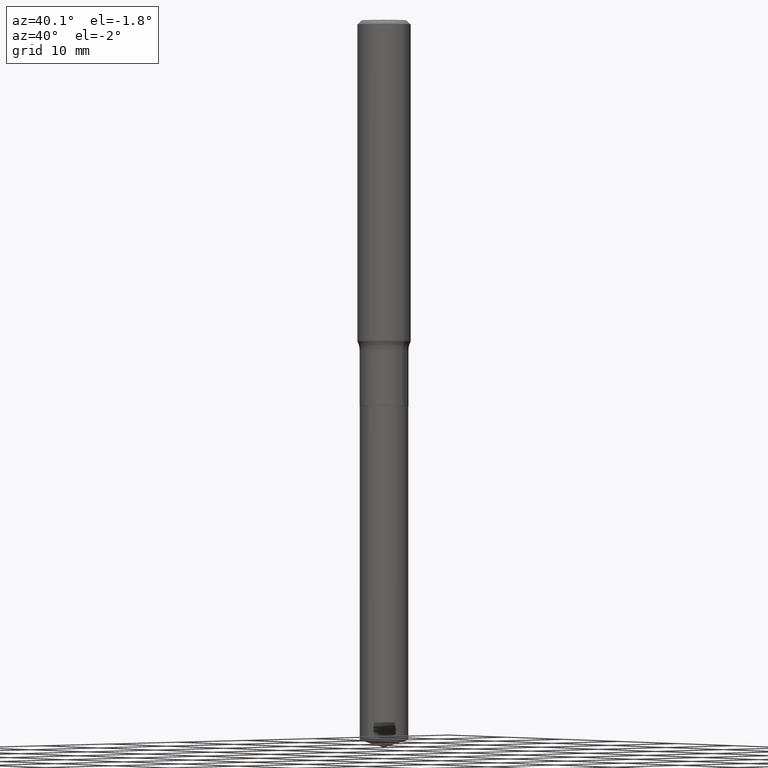
[diagram: clean part render]
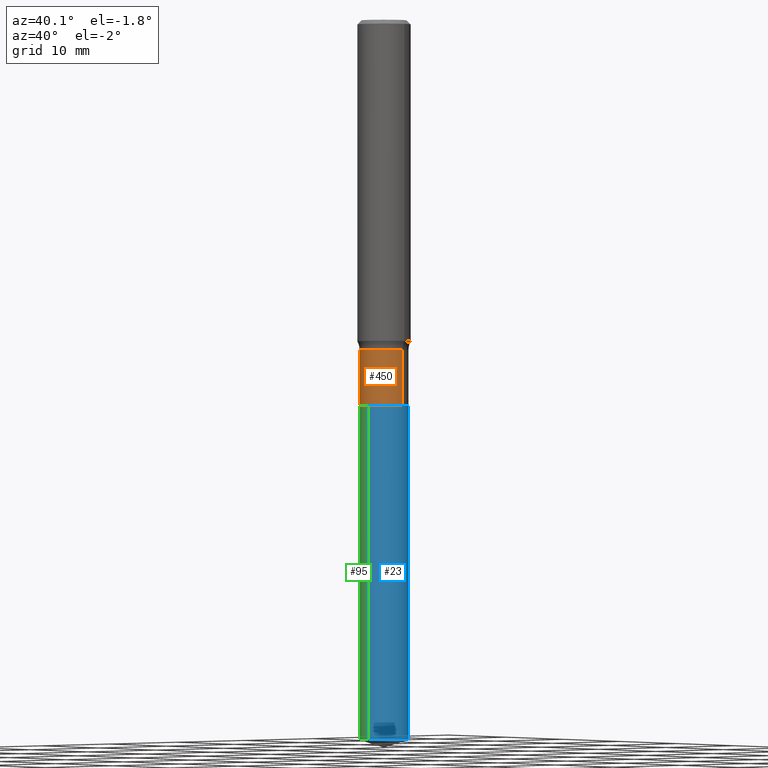
[diagram: same view with three faces highlighted in distinct colors, each labeled with its STEP entity id]
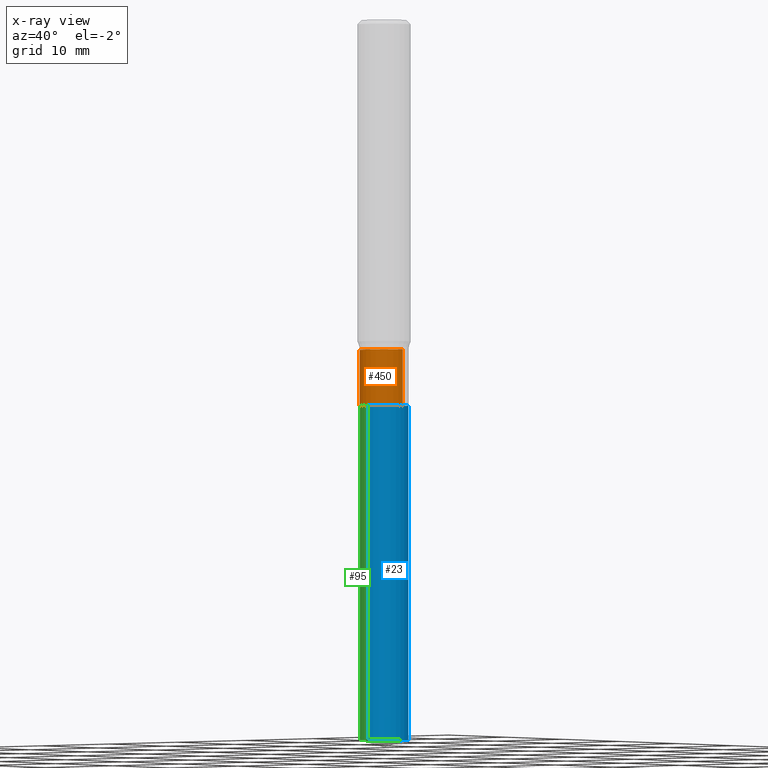
[diagram: x-ray of the same camera — body ghosted, the three highlighted faces saturated]
A machine part, auxiliary view with three faces highlighted in distinct colors.
The next image is the same camera in x-ray (body ghosted, the three faces saturated) — at least one of them is partly hidden behind the body in this view.
Their STEP definitions:

[orange] entity #450 — the highlighted cylindrical surface (edge-blend (fillet) strip) has radius 2.7495 mm, axis along (-0, 0, 1).
#15 = AXIS2_PLACEMENT_3D ( 'NONE', #34, #187, #227 ) ;
#28 = CARTESIAN_POINT ( 'NONE',  ( 0.1082499999999999712, -5.865688649256482338E-15, -1.463500000000000023 ) ) ;
#29 = DIRECTION ( 'NONE',  ( -2.445468806185136597E-29, 3.491481338843145583E-15, 1.000000000000000000 ) ) ;
#34 = CARTESIAN_POINT ( 'NONE',  ( 0.000000000000000000, 0.000000000000000000, 0.000000000000000000 ) ) ;
#54 = AXIS2_PLACEMENT_3D ( 'NONE', #295, #113, #181 ) ;
#69 = ORIENTED_EDGE ( 'NONE', *, *, #369, .T. ) ;
#77 = CYLINDRICAL_SURFACE ( 'NONE', #15, 0.1082499999999999851 ) ;
#104 = ORIENTED_EDGE ( 'NONE', *, *, #237, .T. ) ;
#113 = DIRECTION ( 'NONE',  ( -2.445468806185136597E-29, 3.491481338843145583E-15, 1.000000000000000000 ) ) ;
#117 = LINE ( 'NONE', #196, #372 ) ;
#135 = CARTESIAN_POINT ( 'NONE',  ( -0.1082499999999999712, -4.774436984287896921E-15, -1.463500000000000023 ) ) ;
#141 = ORIENTED_EDGE ( 'NONE', *, *, #262, .F. ) ;
#153 = DIRECTION ( 'NONE',  ( -2.445468806185136877E-29, 3.491481338843145188E-15, 1.000000000000000000 ) ) ;
#181 = DIRECTION ( 'NONE',  ( 1.000000000000000000, -6.982962677686269077E-15, 0.000000000000000000 ) ) ;
#187 = DIRECTION ( 'NONE',  ( -2.445468806185136597E-29, 3.491481338843145583E-15, 1.000000000000000000 ) ) ;
#196 = CARTESIAN_POINT ( 'NONE',  ( 0.1082499999999999851, -7.559057098595382610E-16, 5.278461359799099291E-30 ) ) ;
#212 = CARTESIAN_POINT ( 'NONE',  ( 4.186642596188954069E-29, -5.977416052099465667E-15, -1.712000000000000188 ) ) ;
#214 = EDGE_LOOP ( 'NONE', ( #363, #104, #69, #141 ) ) ;
#227 = DIRECTION ( 'NONE',  ( 1.000000000000000000, -6.982962677686266711E-15, 4.876176775795935232E-29 ) ) ;
#235 = LINE ( 'NONE', #337, #321 ) ;
#237 = EDGE_CURVE ( 'NONE', #246, #417, #379, .T. ) ;
#246 = VERTEX_POINT ( 'NONE', #318 ) ;
#262 = EDGE_CURVE ( 'NONE', #290, #292, #264, .T. ) ;
#264 = CIRCLE ( 'NONE', #54, 0.1082499999999999712 ) ;
#290 = VERTEX_POINT ( 'NONE', #135 ) ;
#292 = VERTEX_POINT ( 'NONE', #28 ) ;
#295 = CARTESIAN_POINT ( 'NONE',  ( 3.578943597851947764E-29, -5.109782939396944472E-15, -1.463500000000000023 ) ) ;
#304 = CARTESIAN_POINT ( 'NONE',  ( 0.1082499999999999990, -6.733321761959004322E-15, -1.712000000000000188 ) ) ;
#305 = DIRECTION ( 'NONE',  ( -2.445468806185136877E-29, 3.491481338843145188E-15, 1.000000000000000000 ) ) ;
#318 = CARTESIAN_POINT ( 'NONE',  ( -0.1082499999999999990, -4.774436984287896921E-15, -1.712000000000000188 ) ) ;
#321 = VECTOR ( 'NONE', #153, 39.37007874015748143 ) ;
#337 = CARTESIAN_POINT ( 'NONE',  ( -0.1082499999999999851, 7.691625114603083455E-16, -5.324747235200934608E-30 ) ) ;
#347 = EDGE_CURVE ( 'NONE', #246, #290, #235, .T. ) ;
#363 = ORIENTED_EDGE ( 'NONE', *, *, #347, .F. ) ;
#369 = EDGE_CURVE ( 'NONE', #417, #292, #117, .T. ) ;
#371 = FACE_OUTER_BOUND ( 'NONE', #214, .T. ) ;
#372 = VECTOR ( 'NONE', #305, 39.37007874015748143 ) ;
#379 = CIRCLE ( 'NONE', #447, 0.1082499999999999990 ) ;
#417 = VERTEX_POINT ( 'NONE', #304 ) ;
#447 = AXIS2_PLACEMENT_3D ( 'NONE', #212, #29, #468 ) ;
#450 = ADVANCED_FACE ( 'NONE', ( #371 ), #77, .T. ) ;
#468 = DIRECTION ( 'NONE',  ( 1.000000000000000000, -6.982962677686267499E-15, 0.000000000000000000 ) ) ;

[blue] entity #23 — the highlighted cylindrical surface (edge-blend (fillet) strip) has radius 2.7495 mm, axis along (-0, 0, 1).
#23 = ADVANCED_FACE ( 'NONE', ( #465 ), #90, .T. ) ;
#35 = EDGE_CURVE ( 'NONE', #140, #96, #85, .T. ) ;
#36 = VECTOR ( 'NONE', #403, 39.37007874015748143 ) ;
#61 = ORIENTED_EDGE ( 'NONE', *, *, #84, .F. ) ;
#84 = EDGE_CURVE ( 'NONE', #162, #96, #112, .T. ) ;
#85 = LINE ( 'NONE', #192, #152 ) ;
#90 = CYLINDRICAL_SURFACE ( 'NONE', #120, 0.1082499999999999990 ) ;
#96 = VERTEX_POINT ( 'NONE', #420 ) ;
#101 = CIRCLE ( 'NONE', #480, 0.1082499999999999990 ) ;
#107 = DIRECTION ( 'NONE',  ( -2.445515057333488882E-29, 3.491415104566253051E-15, 1.000000000000000000 ) ) ;
#112 = CIRCLE ( 'NONE', #474, 0.1082499999999999990 ) ;
#120 = AXIS2_PLACEMENT_3D ( 'NONE', #311, #462, #428 ) ;
#123 = CARTESIAN_POINT ( 'NONE',  ( 4.187865330592046870E-29, -5.979161792768887170E-15, -1.712500000000000133 ) ) ;
#140 = VERTEX_POINT ( 'NONE', #244 ) ;
#148 = DIRECTION ( 'NONE',  ( -6.982962677686265922E-15, -1.000000000000000000, 5.047294214622195629E-15 ) ) ;
#152 = VECTOR ( 'NONE', #377, 39.37007874015748143 ) ;
#162 = VERTEX_POINT ( 'NONE', #364 ) ;
#192 = CARTESIAN_POINT ( 'NONE',  ( 7.691625114603501551E-16, 0.1082499999999940177, -1.712500000000000355 ) ) ;
#204 = DIRECTION ( 'NONE',  ( -2.445515057333488882E-29, 3.491415104566253051E-15, 1.000000000000000000 ) ) ;
#234 = DIRECTION ( 'NONE',  ( -6.982962677686265922E-15, -1.000000000000000000, 2.523647107311097814E-15 ) ) ;
#243 = ORIENTED_EDGE ( 'NONE', *, *, #35, .T. ) ;
#244 = CARTESIAN_POINT ( 'NONE',  ( 7.691625114603868372E-16, 0.1082499999999888829, -3.194168906103850070 ) ) ;
#248 = EDGE_CURVE ( 'NONE', #466, #140, #101, .T. ) ;
#279 = EDGE_CURVE ( 'NONE', #466, #162, #361, .T. ) ;
#311 = CARTESIAN_POINT ( 'NONE',  ( 4.187865330592046870E-29, -5.979161792768887170E-15, -1.712500000000000133 ) ) ;
#360 = EDGE_LOOP ( 'NONE', ( #481, #243, #61, #391 ) ) ;
#361 = LINE ( 'NONE', #387, #36 ) ;
#364 = CARTESIAN_POINT ( 'NONE',  ( -7.559057098594963527E-16, -0.1082500000000059803, -1.712499999999999911 ) ) ;
#377 = DIRECTION ( 'NONE',  ( -2.445515057333488882E-29, 3.491415104566253051E-15, 1.000000000000000000 ) ) ;
#387 = CARTESIAN_POINT ( 'NONE',  ( -7.559057098594963527E-16, -0.1082500000000059803, -1.712499999999999911 ) ) ;
#391 = ORIENTED_EDGE ( 'NONE', *, *, #279, .F. ) ;
#400 = CARTESIAN_POINT ( 'NONE',  ( 7.811308950451849995E-29, -1.115228299150602313E-14, -3.194168906103849626 ) ) ;
#403 = DIRECTION ( 'NONE',  ( -2.445515057333488882E-29, 3.491415104566253051E-15, 1.000000000000000000 ) ) ;
#420 = CARTESIAN_POINT ( 'NONE',  ( 7.691625114603868372E-16, 0.1082499999999940177, -1.712500000000000355 ) ) ;
#428 = DIRECTION ( 'NONE',  ( -6.982962677686265922E-15, -1.000000000000000000, 2.523647107311097814E-15 ) ) ;
#462 = DIRECTION ( 'NONE',  ( -2.445515057333488882E-29, 3.491415104566253051E-15, 1.000000000000000000 ) ) ;
#465 = FACE_OUTER_BOUND ( 'NONE', #360, .T. ) ;
#466 = VERTEX_POINT ( 'NONE', #490 ) ;
#474 = AXIS2_PLACEMENT_3D ( 'NONE', #123, #204, #234 ) ;
#480 = AXIS2_PLACEMENT_3D ( 'NONE', #400, #107, #148 ) ;
#481 = ORIENTED_EDGE ( 'NONE', *, *, #248, .T. ) ;
#490 = CARTESIAN_POINT ( 'NONE',  ( -7.559057098594603610E-16, -0.1082500000000111845, -3.194168906103849181 ) ) ;

[green] entity #95 — the highlighted cylindrical surface (edge-blend (fillet) strip) has radius 2.7495 mm, axis along (-0, 0, 1).
#4 = AXIS2_PLACEMENT_3D ( 'NONE', #20, #175, #138 ) ;
#20 = CARTESIAN_POINT ( 'NONE',  ( 4.187865330592046870E-29, -5.979161792768887170E-15, -1.712500000000000133 ) ) ;
#22 = ORIENTED_EDGE ( 'NONE', *, *, #383, .T. ) ;
#35 = EDGE_CURVE ( 'NONE', #140, #96, #85, .T. ) ;
#36 = VECTOR ( 'NONE', #403, 39.37007874015748143 ) ;
#44 = FACE_OUTER_BOUND ( 'NONE', #296, .T. ) ;
#45 = AXIS2_PLACEMENT_3D ( 'NONE', #202, #48, #314 ) ;
#48 = DIRECTION ( 'NONE',  ( -2.445515057333488882E-29, 3.491415104566253051E-15, 1.000000000000000000 ) ) ;
#83 = CARTESIAN_POINT ( 'NONE',  ( 7.811308950451849995E-29, -1.115228299150602313E-14, -3.194168906103849626 ) ) ;
#85 = LINE ( 'NONE', #192, #152 ) ;
#95 = ADVANCED_FACE ( 'NONE', ( #44 ), #270, .T. ) ;
#96 = VERTEX_POINT ( 'NONE', #420 ) ;
#119 = DIRECTION ( 'NONE',  ( -6.982962677686265922E-15, -1.000000000000000000, 5.047294214622195629E-15 ) ) ;
#138 = DIRECTION ( 'NONE',  ( -6.982962677686265922E-15, -1.000000000000000000, 2.523647107311097814E-15 ) ) ;
#140 = VERTEX_POINT ( 'NONE', #244 ) ;
#152 = VECTOR ( 'NONE', #377, 39.37007874015748143 ) ;
#162 = VERTEX_POINT ( 'NONE', #364 ) ;
#169 = CIRCLE ( 'NONE', #334, 0.1082499999999999990 ) ;
#175 = DIRECTION ( 'NONE',  ( -2.445515057333488882E-29, 3.491415104566253051E-15, 1.000000000000000000 ) ) ;
#192 = CARTESIAN_POINT ( 'NONE',  ( 7.691625114603501551E-16, 0.1082499999999940177, -1.712500000000000355 ) ) ;
#202 = CARTESIAN_POINT ( 'NONE',  ( 4.187865330592046870E-29, -5.979161792768887170E-15, -1.712500000000000133 ) ) ;
#211 = ORIENTED_EDGE ( 'NONE', *, *, #232, .F. ) ;
#232 = EDGE_CURVE ( 'NONE', #96, #162, #275, .T. ) ;
#244 = CARTESIAN_POINT ( 'NONE',  ( 7.691625114603868372E-16, 0.1082499999999888829, -3.194168906103850070 ) ) ;
#270 = CYLINDRICAL_SURFACE ( 'NONE', #45, 0.1082499999999999990 ) ;
#275 = CIRCLE ( 'NONE', #4, 0.1082499999999999990 ) ;
#279 = EDGE_CURVE ( 'NONE', #466, #162, #361, .T. ) ;
#287 = ORIENTED_EDGE ( 'NONE', *, *, #35, .F. ) ;
#296 = EDGE_LOOP ( 'NONE', ( #287, #22, #435, #211 ) ) ;
#314 = DIRECTION ( 'NONE',  ( -6.982962677686265922E-15, -1.000000000000000000, 2.523647107311097814E-15 ) ) ;
#334 = AXIS2_PLACEMENT_3D ( 'NONE', #83, #451, #119 ) ;
#361 = LINE ( 'NONE', #387, #36 ) ;
#364 = CARTESIAN_POINT ( 'NONE',  ( -7.559057098594963527E-16, -0.1082500000000059803, -1.712499999999999911 ) ) ;
#377 = DIRECTION ( 'NONE',  ( -2.445515057333488882E-29, 3.491415104566253051E-15, 1.000000000000000000 ) ) ;
#383 = EDGE_CURVE ( 'NONE', #140, #466, #169, .T. ) ;
#387 = CARTESIAN_POINT ( 'NONE',  ( -7.559057098594963527E-16, -0.1082500000000059803, -1.712499999999999911 ) ) ;
#403 = DIRECTION ( 'NONE',  ( -2.445515057333488882E-29, 3.491415104566253051E-15, 1.000000000000000000 ) ) ;
#420 = CARTESIAN_POINT ( 'NONE',  ( 7.691625114603868372E-16, 0.1082499999999940177, -1.712500000000000355 ) ) ;
#435 = ORIENTED_EDGE ( 'NONE', *, *, #279, .T. ) ;
#451 = DIRECTION ( 'NONE',  ( -2.445515057333488882E-29, 3.491415104566253051E-15, 1.000000000000000000 ) ) ;
#466 = VERTEX_POINT ( 'NONE', #490 ) ;
#490 = CARTESIAN_POINT ( 'NONE',  ( -7.559057098594603610E-16, -0.1082500000000111845, -3.194168906103849181 ) ) ;